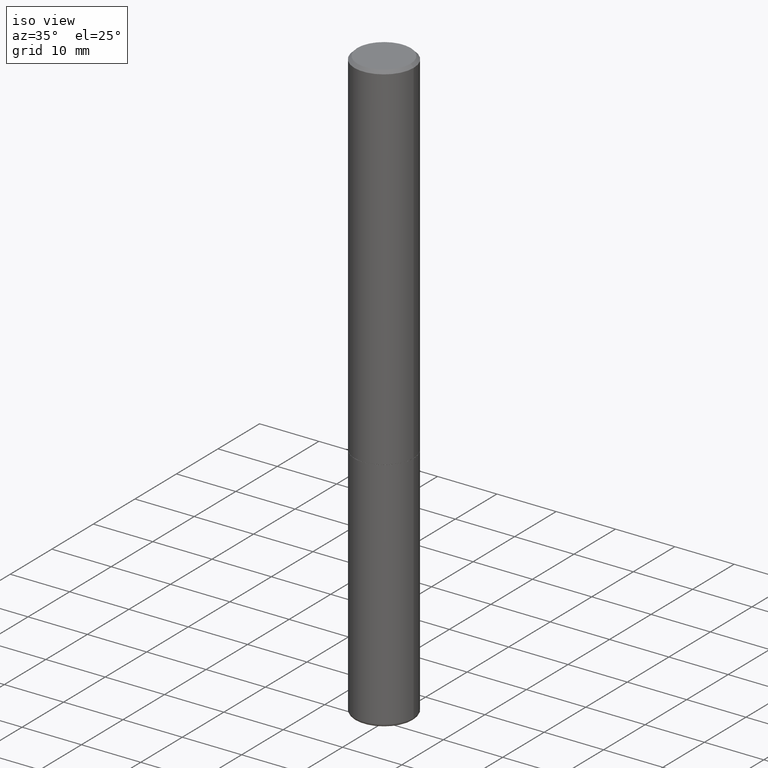
[diagram: clean part render]
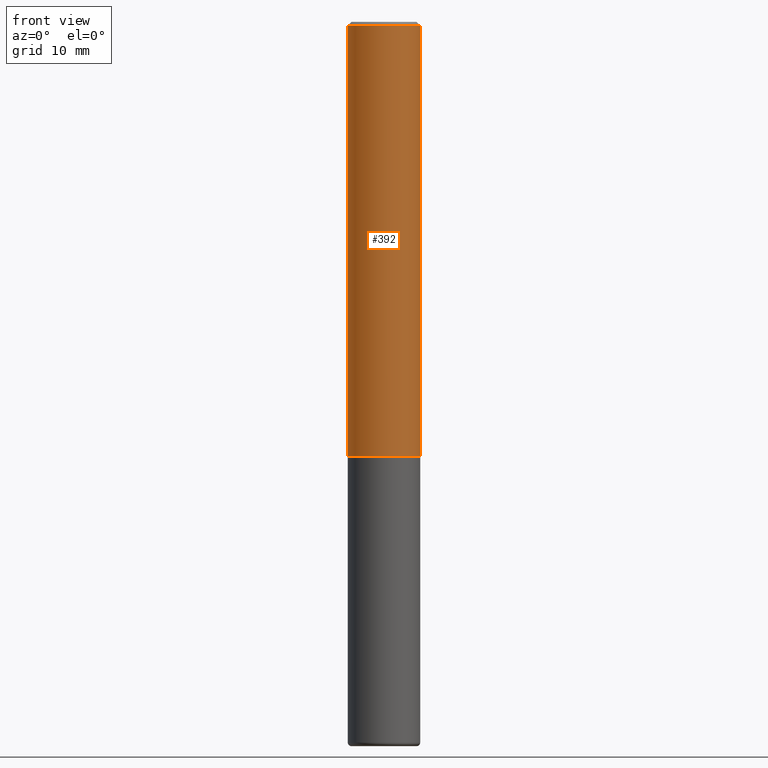
[diagram: tour spotlight — one face highlighted and labeled with its STEP entity id]
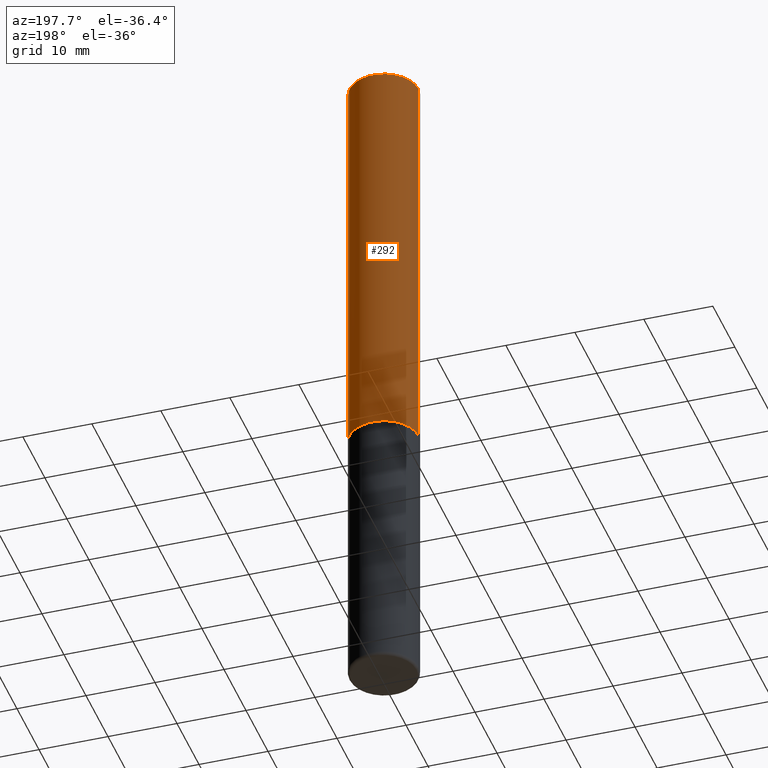
[diagram: tour spotlight — one face highlighted and labeled with its STEP entity id]
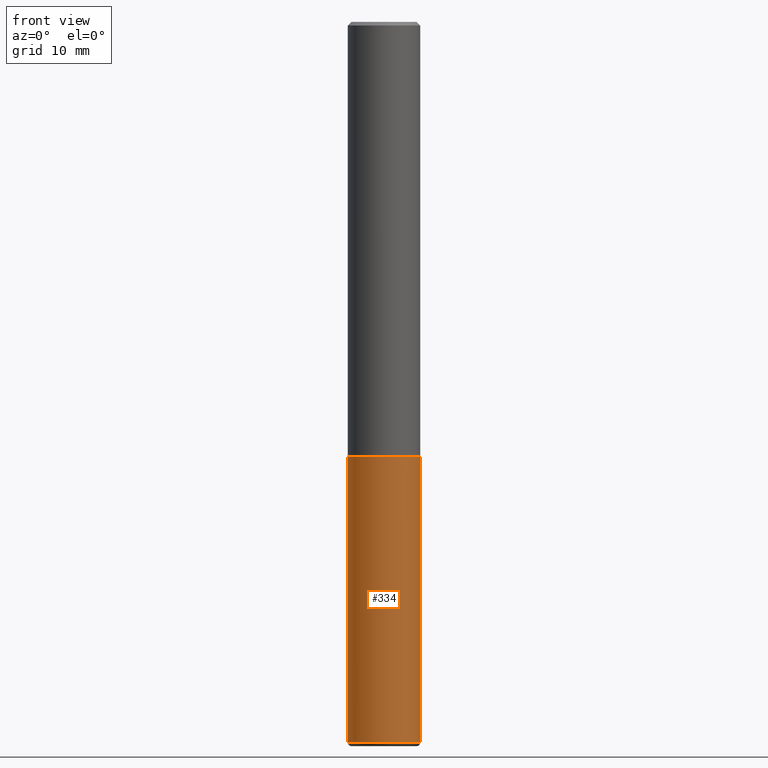
[diagram: tour spotlight — one face highlighted and labeled with its STEP entity id]
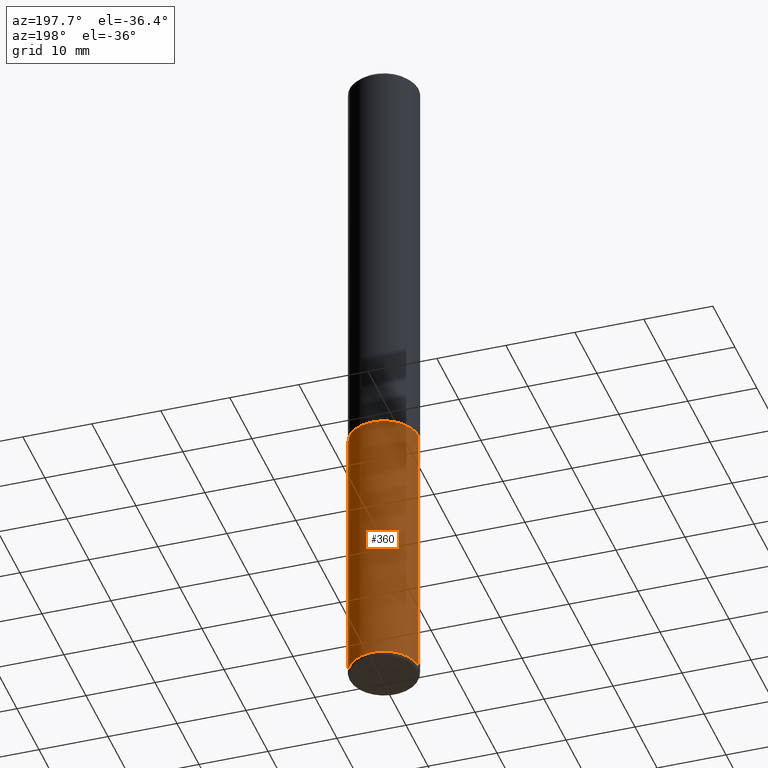
[diagram: tour spotlight — one face highlighted and labeled with its STEP entity id]
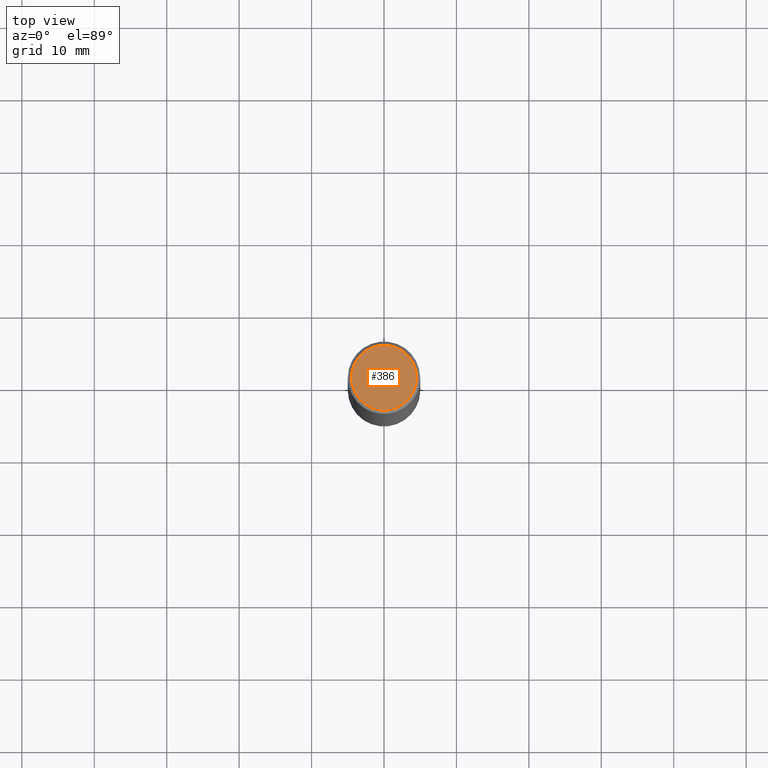
[diagram: tour spotlight — one face highlighted and labeled with its STEP entity id]
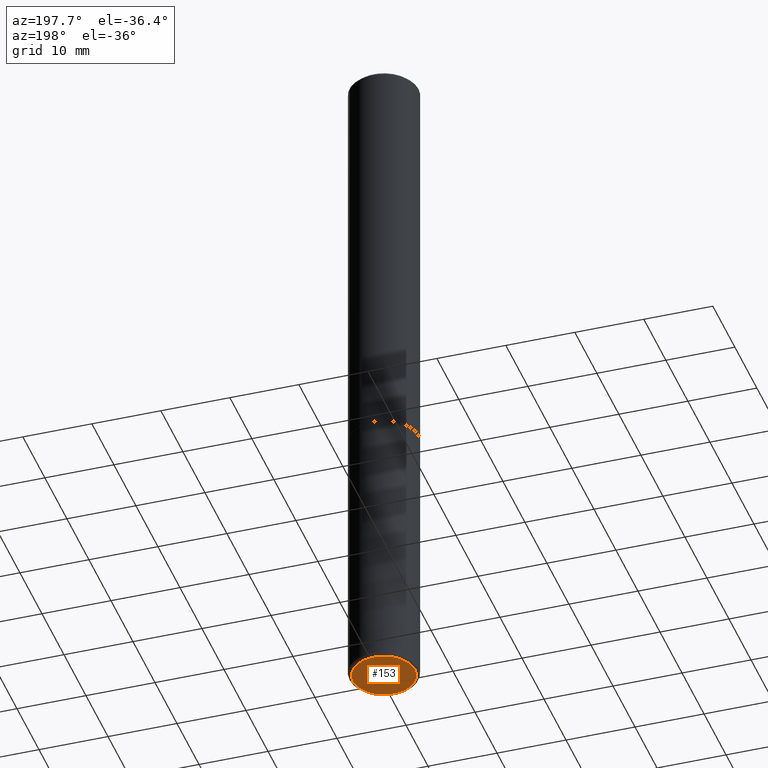
[diagram: tour spotlight — one face highlighted and labeled with its STEP entity id]
A machine part: a face-by-face anatomy tour. The part has 14 B-rep faces; the first image is the clean iso view, then the 6 largest visible faces are spotlighted one at a time (largest first), each with its STEP entity span.

Face 1 — front view, entity #392. In plain terms, the highlighted cylindrical surface (edge-blend (fillet) strip) has radius 5 mm, axis along (-0, 0, 1).
Definition (entity closure, byte-faithful):
#4 = DIRECTION ( 'NONE',  ( -2.445468806185136877E-29, 3.491481338843145188E-15, 1.000000000000000000 ) ) ;
#18 = VERTEX_POINT ( 'NONE', #310 ) ;
#23 = EDGE_CURVE ( 'NONE', #355, #165, #242, .T. ) ;
#39 = EDGE_CURVE ( 'NONE', #18, #355, #339, .T. ) ;
#41 = DIRECTION ( 'NONE',  ( -2.445468806185136597E-29, 3.491481338843145583E-15, 1.000000000000000000 ) ) ;
#55 = EDGE_CURVE ( 'NONE', #159, #165, #323, .T. ) ;
#78 = CARTESIAN_POINT ( 'NONE',  ( 0.1968500000000001915, -1.374596203102542989E-15, 9.598753983154309266E-30 ) ) ;
#82 = DIRECTION ( 'NONE',  ( -2.445468806185136597E-29, 3.491481338843145583E-15, 1.000000000000000000 ) ) ;
#98 = CYLINDRICAL_SURFACE ( 'NONE', #253, 0.1968500000000001915 ) ;
#110 = VECTOR ( 'NONE', #4, 39.37007874015748143 ) ;
#140 = ORIENTED_EDGE ( 'NONE', *, *, #286, .F. ) ;
#144 = CARTESIAN_POINT ( 'NONE',  ( 4.890937612370283668E-31, -6.982962677686305168E-17, -0.02000000000000004205 ) ) ;
#159 = VERTEX_POINT ( 'NONE', #320 ) ;
#162 = AXIS2_PLACEMENT_3D ( 'NONE', #298, #82, #270 ) ;
#165 = VERTEX_POINT ( 'NONE', #352 ) ;
#179 = DIRECTION ( 'NONE',  ( 1.000000000000000000, -6.982962677686266711E-15, 0.000000000000000000 ) ) ;
#185 = LINE ( 'NONE', #291, #389 ) ;
#190 = DIRECTION ( 'NONE',  ( 1.000000000000000000, -6.982962677686266711E-15, 4.876176775795935793E-29 ) ) ;
#210 = ORIENTED_EDGE ( 'NONE', *, *, #39, .T. ) ;
#242 = LINE ( 'NONE', #78, #110 ) ;
#253 = AXIS2_PLACEMENT_3D ( 'NONE', #350, #316, #190 ) ;
#270 = DIRECTION ( 'NONE',  ( 1.000000000000000000, -6.982962677686269077E-15, 0.000000000000000000 ) ) ;
#277 = ORIENTED_EDGE ( 'NONE', *, *, #55, .F. ) ;
#286 = EDGE_CURVE ( 'NONE', #18, #159, #185, .T. ) ;
#291 = CARTESIAN_POINT ( 'NONE',  ( -0.1968500000000001915, 1.398703375343758577E-15, -9.682923725166790684E-30 ) ) ;
#295 = ORIENTED_EDGE ( 'NONE', *, *, #23, .T. ) ;
#296 = FACE_OUTER_BOUND ( 'NONE', #376, .T. ) ;
#298 = CARTESIAN_POINT ( 'NONE',  ( 5.774240945164344150E-29, -8.244085737276433464E-15, -2.361199999999999743 ) ) ;
#305 = AXIS2_PLACEMENT_3D ( 'NONE', #144, #41, #179 ) ;
#310 = CARTESIAN_POINT ( 'NONE',  ( -0.1968500000000002748, -2.758254306682887043E-15, -2.361199999999999743 ) ) ;
#312 = DIRECTION ( 'NONE',  ( -2.445468806185136877E-29, 3.491481338843145188E-15, 1.000000000000000000 ) ) ;
#316 = DIRECTION ( 'NONE',  ( -2.445468806185136597E-29, 3.491481338843145583E-15, 1.000000000000000000 ) ) ;
#320 = CARTESIAN_POINT ( 'NONE',  ( -0.1968500000000000527, 1.304766576325678902E-15, -0.02000000000000004205 ) ) ;
#323 = CIRCLE ( 'NONE', #305, 0.1968500000000000527 ) ;
#339 = CIRCLE ( 'NONE', #162, 0.1968500000000002748 ) ;
#350 = CARTESIAN_POINT ( 'NONE',  ( 0.000000000000000000, 0.000000000000000000, 0.000000000000000000 ) ) ;
#352 = CARTESIAN_POINT ( 'NONE',  ( 0.1968500000000000527, -1.420318657638189516E-15, -0.02000000000000004205 ) ) ;
#354 = CARTESIAN_POINT ( 'NONE',  ( 0.1968500000000002748, -9.618681940378978228E-15, -2.361199999999999743 ) ) ;
#355 = VERTEX_POINT ( 'NONE', #354 ) ;
#376 = EDGE_LOOP ( 'NONE', ( #140, #210, #295, #277 ) ) ;
#389 = VECTOR ( 'NONE', #312, 39.37007874015748143 ) ;
#392 = ADVANCED_FACE ( 'NONE', ( #296 ), #98, .T. ) ;

Face 2 — auxiliary view, entity #292. In plain terms, the highlighted cylindrical surface (edge-blend (fillet) strip) has radius 5 mm, axis along (-0, 0, 1).
Definition (entity closure, byte-faithful):
#4 = DIRECTION ( 'NONE',  ( -2.445468806185136877E-29, 3.491481338843145188E-15, 1.000000000000000000 ) ) ;
#18 = VERTEX_POINT ( 'NONE', #310 ) ;
#23 = EDGE_CURVE ( 'NONE', #355, #165, #242, .T. ) ;
#63 = DIRECTION ( 'NONE',  ( 1.000000000000000000, -6.982962677686266711E-15, 4.876176775795935793E-29 ) ) ;
#77 = EDGE_CURVE ( 'NONE', #165, #159, #311, .T. ) ;
#78 = CARTESIAN_POINT ( 'NONE',  ( 0.1968500000000001915, -1.374596203102542989E-15, 9.598753983154309266E-30 ) ) ;
#92 = ORIENTED_EDGE ( 'NONE', *, *, #77, .F. ) ;
#99 = ORIENTED_EDGE ( 'NONE', *, *, #23, .F. ) ;
#110 = VECTOR ( 'NONE', #4, 39.37007874015748143 ) ;
#112 = EDGE_CURVE ( 'NONE', #355, #18, #221, .T. ) ;
#128 = AXIS2_PLACEMENT_3D ( 'NONE', #240, #300, #207 ) ;
#142 = EDGE_LOOP ( 'NONE', ( #184, #227, #92, #99 ) ) ;
#146 = DIRECTION ( 'NONE',  ( 1.000000000000000000, -6.982962677686269077E-15, 0.000000000000000000 ) ) ;
#151 = CARTESIAN_POINT ( 'NONE',  ( 5.774240945164344150E-29, -8.244085737276433464E-15, -2.361199999999999743 ) ) ;
#159 = VERTEX_POINT ( 'NONE', #320 ) ;
#165 = VERTEX_POINT ( 'NONE', #352 ) ;
#184 = ORIENTED_EDGE ( 'NONE', *, *, #112, .T. ) ;
#185 = LINE ( 'NONE', #291, #389 ) ;
#207 = DIRECTION ( 'NONE',  ( 1.000000000000000000, -6.982962677686266711E-15, 0.000000000000000000 ) ) ;
#214 = AXIS2_PLACEMENT_3D ( 'NONE', #151, #245, #146 ) ;
#221 = CIRCLE ( 'NONE', #214, 0.1968500000000002748 ) ;
#224 = CYLINDRICAL_SURFACE ( 'NONE', #402, 0.1968500000000001915 ) ;
#227 = ORIENTED_EDGE ( 'NONE', *, *, #286, .T. ) ;
#240 = CARTESIAN_POINT ( 'NONE',  ( 4.890937612370283668E-31, -6.982962677686305168E-17, -0.02000000000000004205 ) ) ;
#242 = LINE ( 'NONE', #78, #110 ) ;
#245 = DIRECTION ( 'NONE',  ( -2.445468806185136597E-29, 3.491481338843145583E-15, 1.000000000000000000 ) ) ;
#286 = EDGE_CURVE ( 'NONE', #18, #159, #185, .T. ) ;
#291 = CARTESIAN_POINT ( 'NONE',  ( -0.1968500000000001915, 1.398703375343758577E-15, -9.682923725166790684E-30 ) ) ;
#292 = ADVANCED_FACE ( 'NONE', ( #317 ), #224, .T. ) ;
#300 = DIRECTION ( 'NONE',  ( -2.445468806185136597E-29, 3.491481338843145583E-15, 1.000000000000000000 ) ) ;
#310 = CARTESIAN_POINT ( 'NONE',  ( -0.1968500000000002748, -2.758254306682887043E-15, -2.361199999999999743 ) ) ;
#311 = CIRCLE ( 'NONE', #128, 0.1968500000000000527 ) ;
#312 = DIRECTION ( 'NONE',  ( -2.445468806185136877E-29, 3.491481338843145188E-15, 1.000000000000000000 ) ) ;
#317 = FACE_OUTER_BOUND ( 'NONE', #142, .T. ) ;
#320 = CARTESIAN_POINT ( 'NONE',  ( -0.1968500000000000527, 1.304766576325678902E-15, -0.02000000000000004205 ) ) ;
#352 = CARTESIAN_POINT ( 'NONE',  ( 0.1968500000000000527, -1.420318657638189516E-15, -0.02000000000000004205 ) ) ;
#353 = DIRECTION ( 'NONE',  ( -2.445468806185136597E-29, 3.491481338843145583E-15, 1.000000000000000000 ) ) ;
#354 = CARTESIAN_POINT ( 'NONE',  ( 0.1968500000000002748, -9.618681940378978228E-15, -2.361199999999999743 ) ) ;
#355 = VERTEX_POINT ( 'NONE', #354 ) ;
#389 = VECTOR ( 'NONE', #312, 39.37007874015748143 ) ;
#402 = AXIS2_PLACEMENT_3D ( 'NONE', #404, #353, #63 ) ;
#404 = CARTESIAN_POINT ( 'NONE',  ( 0.000000000000000000, 0.000000000000000000, 0.000000000000000000 ) ) ;

Face 3 — front view, entity #334. In plain terms, the highlighted cylindrical surface (edge-blend (fillet) strip) has radius 5 mm, axis along (-0, 0, 1).
Definition (entity closure, byte-faithful):
#16 = VERTEX_POINT ( 'NONE', #36 ) ;
#19 = DIRECTION ( 'NONE',  ( -2.445468806185136877E-29, 3.491481338843145188E-15, 1.000000000000000000 ) ) ;
#31 = CARTESIAN_POINT ( 'NONE',  ( 9.579634954469036932E-29, -1.367717984865025539E-14, -3.917300000000000448 ) ) ;
#36 = CARTESIAN_POINT ( 'NONE',  ( 0.1968500000000000250, -9.622173421717819657E-15, -2.362199999999999633 ) ) ;
#51 = ORIENTED_EDGE ( 'NONE', *, *, #417, .F. ) ;
#53 = DIRECTION ( 'NONE',  ( -2.445468806185136597E-29, 3.491481338843145583E-15, 1.000000000000000000 ) ) ;
#58 = CARTESIAN_POINT ( 'NONE',  ( -0.1968500000000000250, -9.563675158289009718E-15, -2.362199999999999633 ) ) ;
#72 = CARTESIAN_POINT ( 'NONE',  ( -0.1968499999999999417, -1.227847647330649996E-14, -3.917300000000000448 ) ) ;
#86 = EDGE_LOOP ( 'NONE', ( #371, #230, #172, #51 ) ) ;
#90 = VECTOR ( 'NONE', #19, 39.37007874015748143 ) ;
#108 = DIRECTION ( 'NONE',  ( 1.000000000000000000, -6.982962677686266711E-15, 4.876176775795935793E-29 ) ) ;
#121 = AXIS2_PLACEMENT_3D ( 'NONE', #31, #261, #161 ) ;
#122 = VERTEX_POINT ( 'NONE', #72 ) ;
#124 = CARTESIAN_POINT ( 'NONE',  ( 0.1968499999999999417, -1.505177605175279857E-14, -3.917300000000000448 ) ) ;
#161 = DIRECTION ( 'NONE',  ( 1.000000000000000000, -6.982962677686269866E-15, 0.000000000000000000 ) ) ;
#166 = DIRECTION ( 'NONE',  ( -2.445468806185136877E-29, 3.491481338843145188E-15, 1.000000000000000000 ) ) ;
#167 = LINE ( 'NONE', #383, #90 ) ;
#170 = DIRECTION ( 'NONE',  ( -2.445468806185136597E-29, 3.491481338843145583E-15, 1.000000000000000000 ) ) ;
#172 = ORIENTED_EDGE ( 'NONE', *, *, #309, .T. ) ;
#173 = VECTOR ( 'NONE', #166, 39.37007874015748143 ) ;
#201 = FACE_OUTER_BOUND ( 'NONE', #86, .T. ) ;
#208 = AXIS2_PLACEMENT_3D ( 'NONE', #391, #170, #108 ) ;
#211 = EDGE_CURVE ( 'NONE', #122, #216, #167, .T. ) ;
#216 = VERTEX_POINT ( 'NONE', #58 ) ;
#225 = EDGE_CURVE ( 'NONE', #122, #265, #272, .T. ) ;
#230 = ORIENTED_EDGE ( 'NONE', *, *, #225, .T. ) ;
#255 = CARTESIAN_POINT ( 'NONE',  ( 5.776686413970529753E-29, -8.247577218615278049E-15, -2.362199999999999633 ) ) ;
#261 = DIRECTION ( 'NONE',  ( -2.445468806185136597E-29, 3.491481338843145583E-15, 1.000000000000000000 ) ) ;
#263 = CARTESIAN_POINT ( 'NONE',  ( 0.1968499999999999694, -1.374596203102541411E-15, 9.598753983154298056E-30 ) ) ;
#265 = VERTEX_POINT ( 'NONE', #124 ) ;
#272 = CIRCLE ( 'NONE', #121, 0.1968499999999999694 ) ;
#290 = LINE ( 'NONE', #263, #173 ) ;
#309 = EDGE_CURVE ( 'NONE', #265, #16, #290, .T. ) ;
#334 = ADVANCED_FACE ( 'NONE', ( #201 ), #415, .T. ) ;
#347 = AXIS2_PLACEMENT_3D ( 'NONE', #255, #53, #381 ) ;
#371 = ORIENTED_EDGE ( 'NONE', *, *, #211, .F. ) ;
#381 = DIRECTION ( 'NONE',  ( 1.000000000000000000, -6.982962677686262766E-15, 0.000000000000000000 ) ) ;
#383 = CARTESIAN_POINT ( 'NONE',  ( -0.1968499999999999694, 1.398703375343756999E-15, -9.682923725166782276E-30 ) ) ;
#391 = CARTESIAN_POINT ( 'NONE',  ( 0.000000000000000000, 0.000000000000000000, 0.000000000000000000 ) ) ;
#415 = CYLINDRICAL_SURFACE ( 'NONE', #208, 0.1968499999999999694 ) ;
#416 = CIRCLE ( 'NONE', #347, 0.1968500000000000250 ) ;
#417 = EDGE_CURVE ( 'NONE', #216, #16, #416, .T. ) ;

Face 4 — auxiliary view, entity #360. In plain terms, the highlighted cylindrical surface (edge-blend (fillet) strip) has radius 5 mm, axis along (-0, 0, 1).
Definition (entity closure, byte-faithful):
#16 = VERTEX_POINT ( 'NONE', #36 ) ;
#19 = DIRECTION ( 'NONE',  ( -2.445468806185136877E-29, 3.491481338843145188E-15, 1.000000000000000000 ) ) ;
#36 = CARTESIAN_POINT ( 'NONE',  ( 0.1968500000000000250, -9.622173421717819657E-15, -2.362199999999999633 ) ) ;
#40 = AXIS2_PLACEMENT_3D ( 'NONE', #169, #103, #59 ) ;
#58 = CARTESIAN_POINT ( 'NONE',  ( -0.1968500000000000250, -9.563675158289009718E-15, -2.362199999999999633 ) ) ;
#59 = DIRECTION ( 'NONE',  ( 1.000000000000000000, -6.982962677686269866E-15, 0.000000000000000000 ) ) ;
#61 = ORIENTED_EDGE ( 'NONE', *, *, #309, .F. ) ;
#65 = CARTESIAN_POINT ( 'NONE',  ( 0.000000000000000000, 0.000000000000000000, 0.000000000000000000 ) ) ;
#72 = CARTESIAN_POINT ( 'NONE',  ( -0.1968499999999999417, -1.227847647330649996E-14, -3.917300000000000448 ) ) ;
#90 = VECTOR ( 'NONE', #19, 39.37007874015748143 ) ;
#102 = EDGE_LOOP ( 'NONE', ( #307, #133, #374, #61 ) ) ;
#103 = DIRECTION ( 'NONE',  ( -2.445468806185136597E-29, 3.491481338843145583E-15, 1.000000000000000000 ) ) ;
#116 = CIRCLE ( 'NONE', #40, 0.1968499999999999694 ) ;
#122 = VERTEX_POINT ( 'NONE', #72 ) ;
#124 = CARTESIAN_POINT ( 'NONE',  ( 0.1968499999999999417, -1.505177605175279857E-14, -3.917300000000000448 ) ) ;
#126 = DIRECTION ( 'NONE',  ( -2.445468806185136597E-29, 3.491481338843145583E-15, 1.000000000000000000 ) ) ;
#129 = DIRECTION ( 'NONE',  ( 1.000000000000000000, -6.982962677686262766E-15, 0.000000000000000000 ) ) ;
#133 = ORIENTED_EDGE ( 'NONE', *, *, #211, .T. ) ;
#138 = AXIS2_PLACEMENT_3D ( 'NONE', #408, #126, #129 ) ;
#166 = DIRECTION ( 'NONE',  ( -2.445468806185136877E-29, 3.491481338843145188E-15, 1.000000000000000000 ) ) ;
#167 = LINE ( 'NONE', #383, #90 ) ;
#169 = CARTESIAN_POINT ( 'NONE',  ( 9.579634954469036932E-29, -1.367717984865025539E-14, -3.917300000000000448 ) ) ;
#173 = VECTOR ( 'NONE', #166, 39.37007874015748143 ) ;
#186 = CIRCLE ( 'NONE', #138, 0.1968500000000000250 ) ;
#199 = FACE_OUTER_BOUND ( 'NONE', #102, .T. ) ;
#211 = EDGE_CURVE ( 'NONE', #122, #216, #167, .T. ) ;
#216 = VERTEX_POINT ( 'NONE', #58 ) ;
#233 = DIRECTION ( 'NONE',  ( -2.445468806185136597E-29, 3.491481338843145583E-15, 1.000000000000000000 ) ) ;
#263 = CARTESIAN_POINT ( 'NONE',  ( 0.1968499999999999694, -1.374596203102541411E-15, 9.598753983154298056E-30 ) ) ;
#265 = VERTEX_POINT ( 'NONE', #124 ) ;
#279 = AXIS2_PLACEMENT_3D ( 'NONE', #65, #233, #326 ) ;
#290 = LINE ( 'NONE', #263, #173 ) ;
#307 = ORIENTED_EDGE ( 'NONE', *, *, #344, .T. ) ;
#309 = EDGE_CURVE ( 'NONE', #265, #16, #290, .T. ) ;
#326 = DIRECTION ( 'NONE',  ( 1.000000000000000000, -6.982962677686266711E-15, 4.876176775795935793E-29 ) ) ;
#330 = CYLINDRICAL_SURFACE ( 'NONE', #279, 0.1968499999999999694 ) ;
#344 = EDGE_CURVE ( 'NONE', #265, #122, #116, .T. ) ;
#360 = ADVANCED_FACE ( 'NONE', ( #199 ), #330, .T. ) ;
#374 = ORIENTED_EDGE ( 'NONE', *, *, #413, .F. ) ;
#383 = CARTESIAN_POINT ( 'NONE',  ( -0.1968499999999999694, 1.398703375343756999E-15, -9.682923725166782276E-30 ) ) ;
#408 = CARTESIAN_POINT ( 'NONE',  ( 5.776686413970529753E-29, -8.247577218615278049E-15, -2.362199999999999633 ) ) ;
#413 = EDGE_CURVE ( 'NONE', #16, #216, #186, .T. ) ;

Face 5 — top view, entity #386. In plain terms, the highlighted planar face has unit normal (0, -0, -1).
Definition (entity closure, byte-faithful):
#12 = CARTESIAN_POINT ( 'NONE',  ( 0.1768499999999998407, -1.316798864272041549E-15, 2.219626494852302982E-16 ) ) ;
#34 = CARTESIAN_POINT ( 'NONE',  ( 1.234936949548815012E-15, 0.1768499999999998407, -5.064871500317991731E-16 ) ) ;
#44 = EDGE_CURVE ( 'NONE', #251, #191, #213, .T. ) ;
#84 = EDGE_CURVE ( 'NONE', #191, #251, #104, .T. ) ;
#88 = AXIS2_PLACEMENT_3D ( 'NONE', #266, #338, #336 ) ;
#91 = ORIENTED_EDGE ( 'NONE', *, *, #84, .T. ) ;
#104 = CIRCLE ( 'NONE', #394, 0.1768499999999998407 ) ;
#107 = PLANE ( 'NONE',  #155 ) ;
#136 = FACE_OUTER_BOUND ( 'NONE', #399, .T. ) ;
#150 = ORIENTED_EDGE ( 'NONE', *, *, #44, .T. ) ;
#155 = AXIS2_PLACEMENT_3D ( 'NONE', #34, #285, #407 ) ;
#174 = CARTESIAN_POINT ( 'NONE',  ( -5.428027354543142984E-45, 7.749784485978325769E-31, 2.219626494852213988E-16 ) ) ;
#191 = VERTEX_POINT ( 'NONE', #12 ) ;
#213 = CIRCLE ( 'NONE', #88, 0.1768499999999998407 ) ;
#226 = CARTESIAN_POINT ( 'NONE',  ( -0.1768499999999998407, 1.269851762937247450E-15, 2.219626494852126227E-16 ) ) ;
#251 = VERTEX_POINT ( 'NONE', #226 ) ;
#266 = CARTESIAN_POINT ( 'NONE',  ( -5.428027354543142984E-45, 7.749784485978325769E-31, 2.219626494852213988E-16 ) ) ;
#275 = DIRECTION ( 'NONE',  ( 1.000000000000000000, -6.982962677686266711E-15, 4.870572768024644056E-29 ) ) ;
#285 = DIRECTION ( 'NONE',  ( 2.438088387897960049E-29, -3.491481338843145188E-15, -1.000000000000000000 ) ) ;
#336 = DIRECTION ( 'NONE',  ( 1.000000000000000000, -6.982962677686266711E-15, 4.870572768024644056E-29 ) ) ;
#338 = DIRECTION ( 'NONE',  ( -2.445468806185136597E-29, 3.491481338843145583E-15, 1.000000000000000000 ) ) ;
#370 = DIRECTION ( 'NONE',  ( -2.445468806185136597E-29, 3.491481338843145583E-15, 1.000000000000000000 ) ) ;
#386 = ADVANCED_FACE ( 'NONE', ( #136 ), #107, .F. ) ;
#394 = AXIS2_PLACEMENT_3D ( 'NONE', #174, #370, #275 ) ;
#399 = EDGE_LOOP ( 'NONE', ( #150, #91 ) ) ;
#407 = DIRECTION ( 'NONE',  ( -1.000000000000000000, 6.982962677686265922E-15, -4.876176775795935793E-29 ) ) ;

Face 6 — auxiliary view, entity #153. In plain terms, the highlighted planar face has unit normal (0, -0, -1).
Definition (entity closure, byte-faithful):
#29 = VERTEX_POINT ( 'NONE', #243 ) ;
#57 = EDGE_CURVE ( 'NONE', #202, #29, #143, .T. ) ;
#67 = ORIENTED_EDGE ( 'NONE', *, *, #197, .F. ) ;
#111 = AXIS2_PLACEMENT_3D ( 'NONE', #118, #361, #114 ) ;
#114 = DIRECTION ( 'NONE',  ( 1.000000000000000000, -6.982962677686270655E-15, 0.000000000000000000 ) ) ;
#118 = CARTESIAN_POINT ( 'NONE',  ( 9.627810689950883669E-29, -1.374596203102546341E-14, -3.937000000000000277 ) ) ;
#139 = PLANE ( 'NONE',  #340 ) ;
#143 = CIRCLE ( 'NONE', #111, 0.1771500000000000574 ) ;
#153 = ADVANCED_FACE ( 'NONE', ( #331 ), #139, .T. ) ;
#154 = ORIENTED_EDGE ( 'NONE', *, *, #57, .F. ) ;
#188 = DIRECTION ( 'NONE',  ( -1.000000000000000000, 6.982962677686265922E-15, -4.876176775795935793E-29 ) ) ;
#197 = EDGE_CURVE ( 'NONE', #29, #202, #299, .T. ) ;
#202 = VERTEX_POINT ( 'NONE', #406 ) ;
#223 = DIRECTION ( 'NONE',  ( 2.438088387897960049E-29, -3.491481338843145188E-15, -1.000000000000000000 ) ) ;
#234 = CARTESIAN_POINT ( 'NONE',  ( 9.627810689950883669E-29, -1.374596203102546341E-14, -3.937000000000000277 ) ) ;
#235 = CARTESIAN_POINT ( 'NONE',  ( 9.627810689950883669E-29, -1.374596203102546341E-14, -3.937000000000000277 ) ) ;
#243 = CARTESIAN_POINT ( 'NONE',  ( -0.1771500000000000574, -1.238285602396647324E-14, -3.937000000000000277 ) ) ;
#267 = AXIS2_PLACEMENT_3D ( 'NONE', #234, #332, #329 ) ;
#274 = EDGE_LOOP ( 'NONE', ( #154, #67 ) ) ;
#299 = CIRCLE ( 'NONE', #267, 0.1771500000000000574 ) ;
#329 = DIRECTION ( 'NONE',  ( 1.000000000000000000, -6.982962677686270655E-15, 0.000000000000000000 ) ) ;
#331 = FACE_OUTER_BOUND ( 'NONE', #274, .T. ) ;
#332 = DIRECTION ( 'NONE',  ( -2.445468806185136597E-29, 3.491481338843145583E-15, 1.000000000000000000 ) ) ;
#340 = AXIS2_PLACEMENT_3D ( 'NONE', #235, #223, #188 ) ;
#361 = DIRECTION ( 'NONE',  ( -2.445468806185136597E-29, 3.491481338843145583E-15, 1.000000000000000000 ) ) ;
#406 = CARTESIAN_POINT ( 'NONE',  ( 0.1771500000000000574, -1.498299386937758739E-14, -3.937000000000000277 ) ) ;